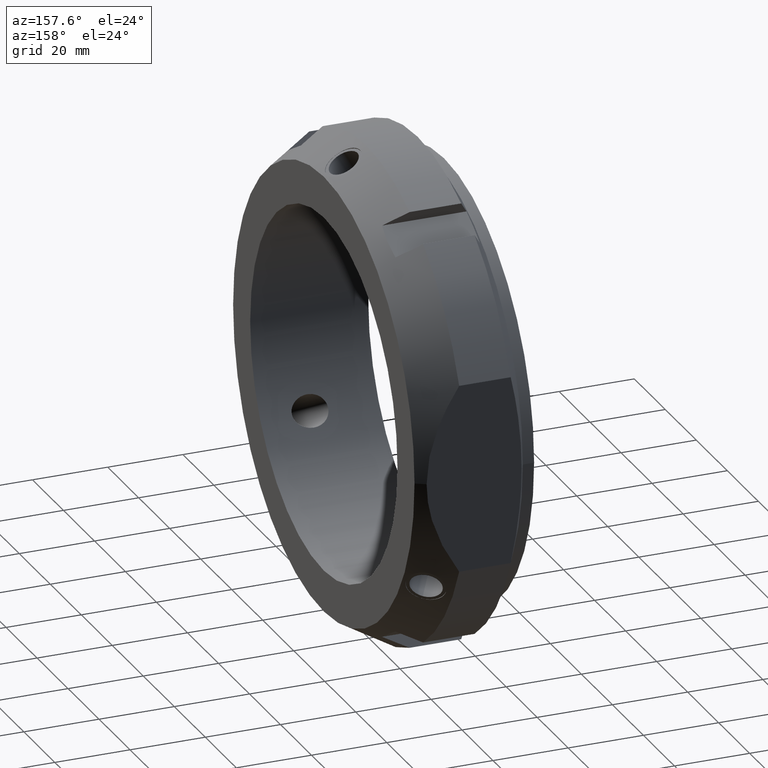
[diagram: clean part render]
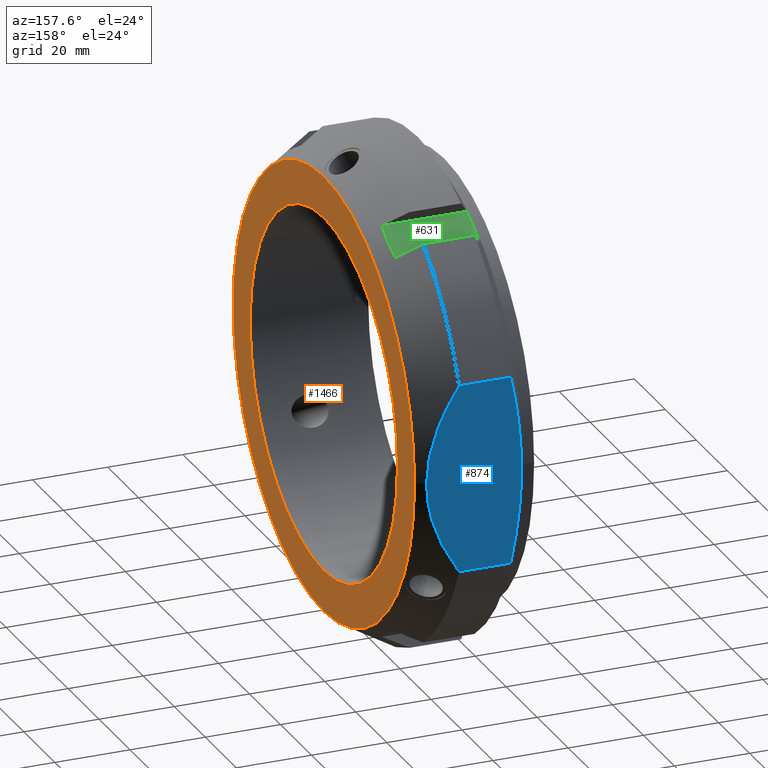
[diagram: same view with three faces highlighted in distinct colors, each labeled with its STEP entity id]
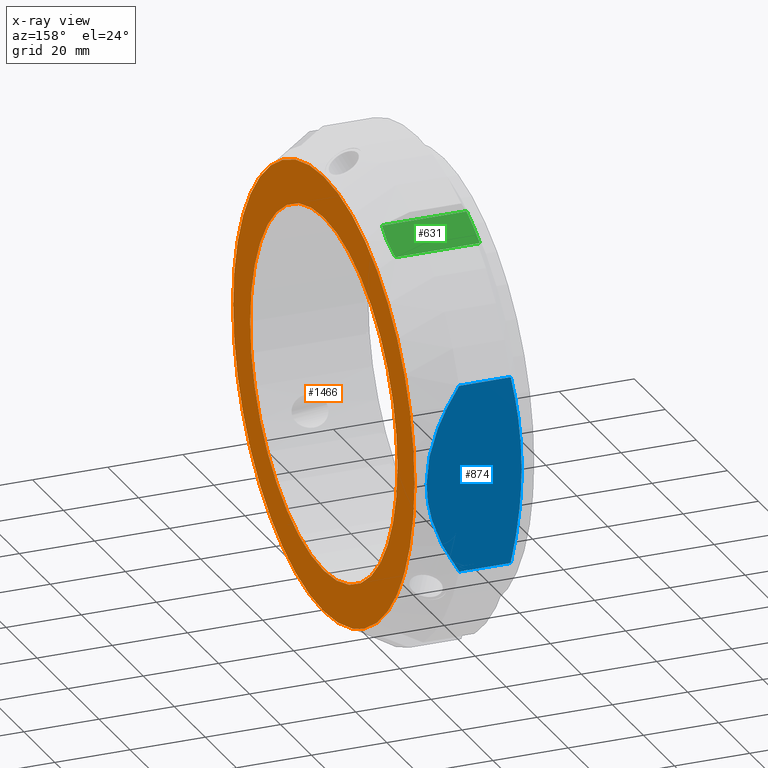
[diagram: x-ray of the same camera — body ghosted, the three highlighted faces saturated]
A machine part, auxiliary view with three faces highlighted in distinct colors.
The next image is the same camera in x-ray (body ghosted, the three faces saturated) — at least one of them is partly hidden behind the body in this view.
Their STEP definitions:

[orange] entity #1466 — the highlighted planar face has unit normal (1, 0, 0).
#938=CARTESIAN_POINT('',(31.999999999999989,58.500000000000007,0.0));
#939=VERTEX_POINT('',#938);
#940=CARTESIAN_POINT('',(31.999999999999989,0.0,0.0));
#941=DIRECTION('',(1.0,0.0,0.0));
#942=DIRECTION('',(0.0,1.0,0.0));
#943=AXIS2_PLACEMENT_3D('',#940,#941,#942);
#944=CIRCLE('',#943,58.500000000000007);
#945=EDGE_CURVE('',#939,#939,#944,.T.);
#1447=CARTESIAN_POINT('',(31.999999999999989,53.000000000000007,0.0));
#1448=DIRECTION('',(1.0,0.0,0.0));
#1449=DIRECTION('',(0.0,0.0,-1.0));
#1450=AXIS2_PLACEMENT_3D('',#1447,#1448,#1449);
#1451=PLANE('',#1450);
#1452=ORIENTED_EDGE('',*,*,#945,.T.);
#1453=EDGE_LOOP('',(#1452));
#1454=FACE_OUTER_BOUND('',#1453,.T.);
#1455=CARTESIAN_POINT('',(31.999999999999989,47.5,0.0));
#1456=VERTEX_POINT('',#1455);
#1457=CARTESIAN_POINT('',(31.999999999999989,0.0,0.0));
#1458=DIRECTION('',(1.0,0.0,0.0));
#1459=DIRECTION('',(0.0,1.0,0.0));
#1460=AXIS2_PLACEMENT_3D('',#1457,#1458,#1459);
#1461=CIRCLE('',#1460,47.5);
#1462=EDGE_CURVE('',#1456,#1456,#1461,.T.);
#1463=ORIENTED_EDGE('',*,*,#1462,.F.);
#1464=EDGE_LOOP('',(#1463));
#1465=FACE_BOUND('',#1464,.T.);
#1466=ADVANCED_FACE('',(#1454,#1465),#1451,.T.);

[blue] entity #874 — the highlighted planar face has unit normal (0, -1, 0).
#517=CARTESIAN_POINT('',(7.041451884327348,60.000000000000043,24.99999999999989));
#518=VERTEX_POINT('',#517);
#526=CARTESIAN_POINT('',(7.041451884327348,60.000000000000028,-24.999999999999943));
#527=VERTEX_POINT('',#526);
#528=CARTESIAN_POINT('',(7.041451884327346,60.000000000000043,24.999999999999879));
#529=CARTESIAN_POINT('',(1.49000698827331,60.000000000000043,-2.442491E-014));
#530=CARTESIAN_POINT('',(7.041451884327346,60.000000000000028,-24.999999999999929));
#538=(BOUNDED_CURVE()B_SPLINE_CURVE(2,(#528,#529,#530),.UNSPECIFIED.,.F.,.U.)B_SPLINE_CURVE_WITH_KNOTS((3,3),(0.0,5.033222956847146),.UNSPECIFIED.)CURVE()GEOMETRIC_REPRESENTATION_ITEM()RATIONAL_B_SPLINE_CURVE((1.0,1.083333333333332,1.0))REPRESENTATION_ITEM(''));
#539=EDGE_CURVE('',#518,#527,#538,.T.);
#800=CARTESIAN_POINT('',(20.741669750802281,60.000000000000043,24.99999999999989));
#801=VERTEX_POINT('',#800);
#809=CARTESIAN_POINT('',(20.741669750802281,60.000000000000043,24.99999999999989));
#810=DIRECTION('',(-1.0,0.0,0.0));
#811=VECTOR('',#810,13.700217866474933);
#812=LINE('',#809,#811);
#813=EDGE_CURVE('',#801,#518,#812,.T.);
#844=CARTESIAN_POINT('',(0.0,60.000000000000078,100.00000000000001));
#845=DIRECTION('',(0.0,-1.0,0.0));
#846=DIRECTION('',(0.0,0.0,-1.0));
#847=AXIS2_PLACEMENT_3D('',#844,#845,#846);
#848=PLANE('',#847);
#849=ORIENTED_EDGE('',*,*,#539,.F.);
#850=ORIENTED_EDGE('',*,*,#813,.F.);
#851=CARTESIAN_POINT('',(20.741669750802281,60.000000000000028,-24.999999999999943));
#852=VERTEX_POINT('',#851);
#853=CARTESIAN_POINT('',(20.741669750802281,60.000000000000028,-24.999999999999943));
#854=CARTESIAN_POINT('',(37.396004438964482,60.000000000000028,-2.220446E-014));
#855=CARTESIAN_POINT('',(20.741669750802281,60.000000000000043,24.999999999999897));
#863=(BOUNDED_CURVE()B_SPLINE_CURVE(2,(#853,#854,#855),.UNSPECIFIED.,.F.,.U.)B_SPLINE_CURVE_WITH_KNOTS((3,3),(0.0,5.291502622129164),.UNSPECIFIED.)CURVE()GEOMETRIC_REPRESENTATION_ITEM()RATIONAL_B_SPLINE_CURVE((1.0,1.083333333333334,1.0))REPRESENTATION_ITEM(''));
#864=EDGE_CURVE('',#852,#801,#863,.T.);
#865=ORIENTED_EDGE('',*,*,#864,.F.);
#866=CARTESIAN_POINT('',(7.041451884327348,60.000000000000028,-24.999999999999943));
#867=DIRECTION('',(1.0,0.0,0.0));
#868=VECTOR('',#867,13.700217866474933);
#869=LINE('',#866,#868);
#870=EDGE_CURVE('',#527,#852,#869,.T.);
#871=ORIENTED_EDGE('',*,*,#870,.F.);
#872=EDGE_LOOP('',(#849,#850,#865,#871));
#873=FACE_OUTER_BOUND('',#872,.T.);
#874=ADVANCED_FACE('',(#873),#848,.F.);

[green] entity #631 — the highlighted planar face has unit normal (0, -0.5, -0.866).
#472=CARTESIAN_POINT('',(4.850162234498965,26.169872981077855,55.327549630850726));
#473=VERTEX_POINT('',#472);
#487=CARTESIAN_POINT('',(4.850162234498973,34.830127018922241,50.32754963085074));
#488=VERTEX_POINT('',#487);
#489=CARTESIAN_POINT('',(4.850162234498965,26.169872981077855,55.327549630850726));
#490=CARTESIAN_POINT('',(4.614334165585442,30.500000000074433,52.827549630807773));
#491=CARTESIAN_POINT('',(4.850162234498973,34.830127018922241,50.32754963085074));
#499=(BOUNDED_CURVE()B_SPLINE_CURVE(2,(#489,#490,#491),.UNSPECIFIED.,.F.,.U.)B_SPLINE_CURVE_WITH_KNOTS((3,3),(1.738591981364525,2.77509091991837),.UNSPECIFIED.)CURVE()GEOMETRIC_REPRESENTATION_ITEM()RATIONAL_B_SPLINE_CURVE((1.031057961683077,1.03451580880872,1.031057961683077))REPRESENTATION_ITEM(''));
#500=EDGE_CURVE('',#473,#488,#499,.T.);
#594=CARTESIAN_POINT('',(0.0,26.169872981077855,55.327549630850726));
#595=DIRECTION('',(0.0,-0.499999999999999,-0.866025403784439));
#596=DIRECTION('',(0.0,0.866025403784439,-0.499999999999999));
#597=AXIS2_PLACEMENT_3D('',#594,#595,#596);
#598=PLANE('',#597);
#599=ORIENTED_EDGE('',*,*,#500,.F.);
#600=CARTESIAN_POINT('',(27.315538700287462,26.169872981077855,55.327549630850726));
#601=VERTEX_POINT('',#600);
#602=CARTESIAN_POINT('',(4.850162234498965,26.169872981077855,55.327549630850726));
#603=DIRECTION('',(1.0,0.0,0.0));
#604=VECTOR('',#603,22.465376465788495);
#605=LINE('',#602,#604);
#606=EDGE_CURVE('',#473,#601,#605,.T.);
#607=ORIENTED_EDGE('',*,*,#606,.T.);
#608=CARTESIAN_POINT('',(27.315538700287437,34.830127018922241,50.32754963085074));
#609=VERTEX_POINT('',#608);
#610=CARTESIAN_POINT('',(27.315538700287437,34.830127018922241,50.32754963085074));
#611=CARTESIAN_POINT('',(28.023022907057893,30.499999999999908,52.827549630850818));
#612=CARTESIAN_POINT('',(27.315538700287462,26.169872981077855,55.327549630850726));
#620=(BOUNDED_CURVE()B_SPLINE_CURVE(2,(#610,#611,#612),.UNSPECIFIED.,.F.,.U.)B_SPLINE_CURVE_WITH_KNOTS((3,3),(1.809948265248421,2.888987784539855),.UNSPECIFIED.)CURVE()GEOMETRIC_REPRESENTATION_ITEM()RATIONAL_B_SPLINE_CURVE((1.031057961683011,1.034515808808791,1.031057961683011))REPRESENTATION_ITEM(''));
#621=EDGE_CURVE('',#609,#601,#620,.T.);
#622=ORIENTED_EDGE('',*,*,#621,.F.);
#623=CARTESIAN_POINT('',(4.850162234498973,34.830127018922241,50.32754963085074));
#624=DIRECTION('',(1.0,0.0,0.0));
#625=VECTOR('',#624,22.465376465788463);
#626=LINE('',#623,#625);
#627=EDGE_CURVE('',#488,#609,#626,.T.);
#628=ORIENTED_EDGE('',*,*,#627,.F.);
#629=EDGE_LOOP('',(#599,#607,#622,#628));
#630=FACE_OUTER_BOUND('',#629,.T.);
#631=ADVANCED_FACE('',(#630),#598,.F.);